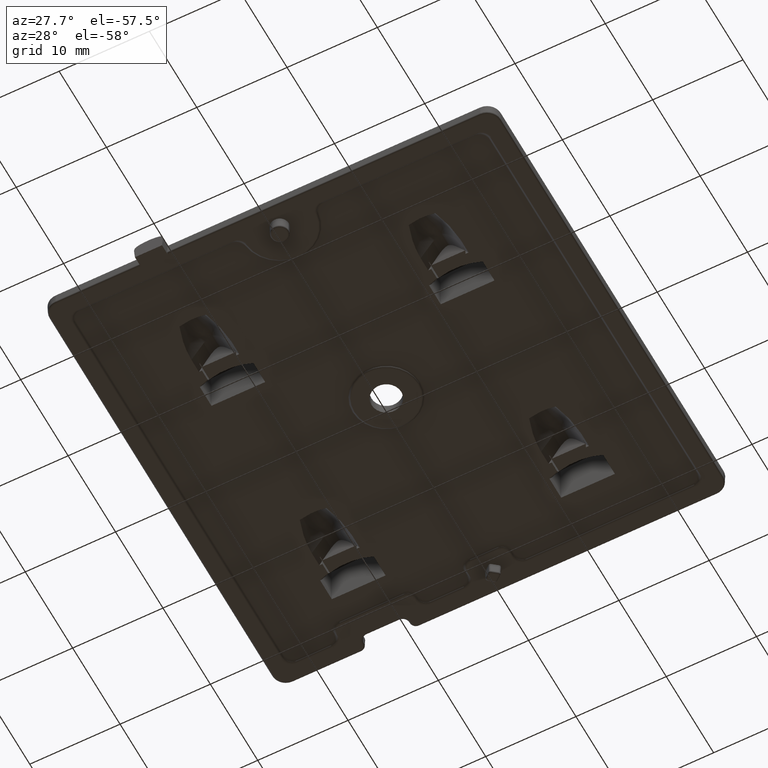
[diagram: clean part render]
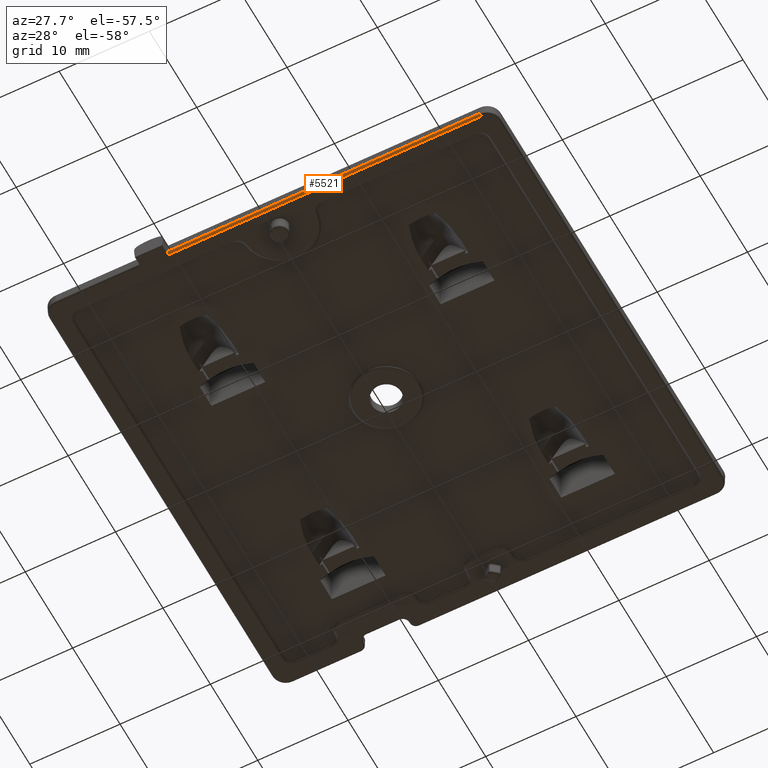
[diagram: same view with one face highlighted and labeled with its STEP entity id]
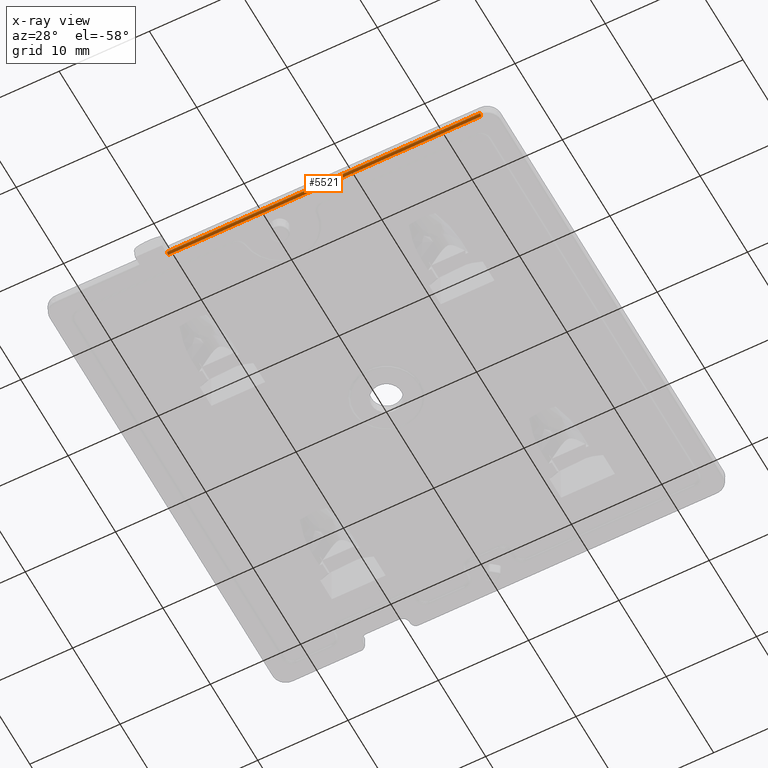
[diagram: x-ray of the same camera — body ghosted, the highlighted face saturated]
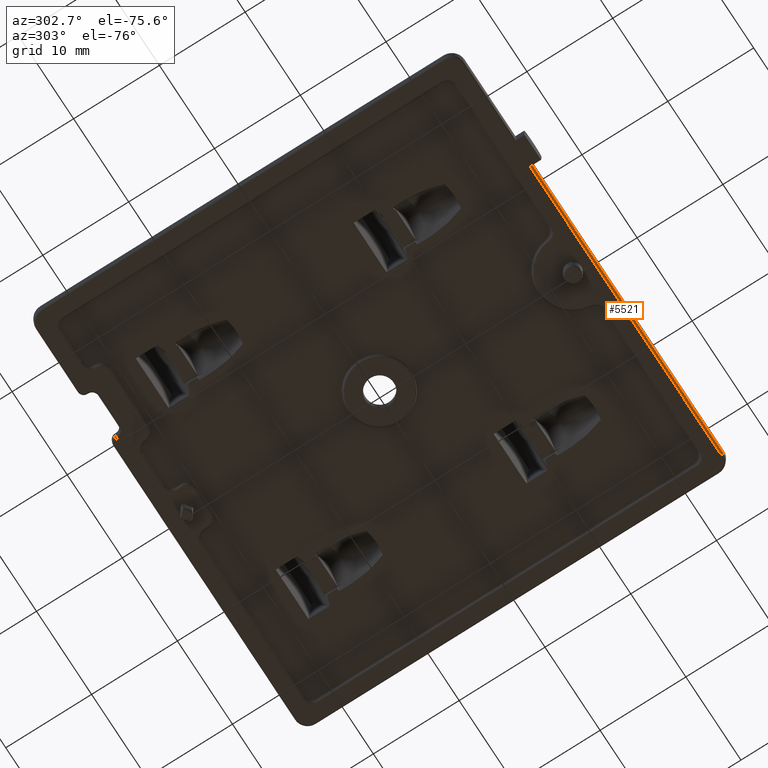
[diagram: same view with one face highlighted and labeled with its STEP entity id]
A machine part, auxiliary view. The second image highlights one B-rep face of the part: STEP entity #5521.
The next image is the same camera in x-ray: the body ghosted, the highlighted face saturated — about 0% of this face is hidden behind the body in this view.
A second angle (auxiliary view) of the same face is appended — the face is thin or edge-on in the first view.
In plain terms, the highlighted cylindrical surface (edge-blend (fillet) strip) has radius 0.25 mm, axis along (1, 0, 0).
Its self-contained STEP definition (entity closure, byte-faithful):
#2145 = AXIS2_PLACEMENT_3D ( 'NONE', #4717, #4645, #4742 ) ;
#2563 = ORIENTED_EDGE ( 'NONE', *, *, #16584, .F. ) ;
#3585 = VERTEX_POINT ( 'NONE', #5607 ) ;
#3792 = CARTESIAN_POINT ( 'NONE',  ( 23.50000000000001400, -24.96652058966291000, 0.2412751258243748800 ) ) ;
#4645 = DIRECTION ( 'NONE',  ( 1.000000000000000000, 6.938893903907227100E-017, 0.0000000000000000000 ) ) ;
#4717 = CARTESIAN_POINT ( 'NONE',  ( 25.00000000000001400, -24.71667288290813900, 0.2500000000000000000 ) ) ;
#4742 = DIRECTION ( 'NONE',  ( 0.0000000000000000000, 1.000000000000000000, 0.0000000000000000000 ) ) ;
#4981 = VECTOR ( 'NONE', #25271, 1000.000000000000000 ) ;
#5521 = ADVANCED_FACE ( 'NONE', ( #20797 ), #13826, .T. ) ;
#5607 = CARTESIAN_POINT ( 'NONE',  ( -11.17889116169957300, -24.96652058966291300, 0.2412751258243748800 ) ) ;
#6212 = DIRECTION ( 'NONE',  ( 1.000000000000000000, 0.0000000000000000000, 0.0000000000000000000 ) ) ;
#9976 = CARTESIAN_POINT ( 'NONE',  ( -11.19999999999998700, -24.71667288290814200, 8.890457814381136400E-015 ) ) ;
#10350 = LINE ( 'NONE', #23217, #4981 ) ;
#10770 = AXIS2_PLACEMENT_3D ( 'NONE', #18377, #6212, #20383 ) ;
#11626 = VERTEX_POINT ( 'NONE', #20775 ) ;
#11872 = LINE ( 'NONE', #3792, #21972 ) ;
#11944 = DIRECTION ( 'NONE',  ( 1.000000000000000000, 6.938893903907227100E-017, -4.685754456830785300E-037 ) ) ;
#12010 = CARTESIAN_POINT ( 'NONE',  ( -11.19999999999998900, -24.85909798259447700, -3.098086273787664100E-017 ) ) ;
#12608 = VERTEX_POINT ( 'NONE', #22219 ) ;
#13826 = CYLINDRICAL_SURFACE ( 'NONE', #2145, 0.2500000000000002200 ) ;
#13964 = EDGE_LOOP ( 'NONE', ( #2563, #19615, #24360, #25440 ) ) ;
#14038 = CARTESIAN_POINT ( 'NONE',  ( -11.17889116169957300, -24.96652058966291300, 0.2412751258243748800 ) ) ;
#14618 = VERTEX_POINT ( 'NONE', #18773 ) ;
#16584 = EDGE_CURVE ( 'NONE', #12608, #3585, #22490, .T. ) ;
#16707 = EDGE_CURVE ( 'NONE', #14618, #11626, #21471, .T. ) ;
#18377 = CARTESIAN_POINT ( 'NONE',  ( 23.50000000000001400, -24.71667288290813900, 0.2500000000000001100 ) ) ;
#18773 = CARTESIAN_POINT ( 'NONE',  ( 23.50000000000001400, -24.96652058966291000, 0.2412751258243751000 ) ) ;
#19615 = ORIENTED_EDGE ( 'NONE', *, *, #20935, .F. ) ;
#20383 = DIRECTION ( 'NONE',  ( 0.0000000000000000000, 0.0000000000000000000, -1.000000000000000000 ) ) ;
#20775 = CARTESIAN_POINT ( 'NONE',  ( 23.50000000000001400, -24.71667288290813900, 0.0000000000000000000 ) ) ;
#20797 = FACE_OUTER_BOUND ( 'NONE', #13964, .T. ) ;
#20935 = EDGE_CURVE ( 'NONE', #11626, #12608, #10350, .T. ) ;
#21471 = CIRCLE ( 'NONE', #10770, 0.2500000000000000000 ) ;
#21972 = VECTOR ( 'NONE', #11944, 1000.000000000000000 ) ;
#22219 = CARTESIAN_POINT ( 'NONE',  ( -11.19999999999998700, -24.71667288290814200, 8.890457814381136400E-015 ) ) ;
#22490 =( BOUNDED_CURVE ( )  B_SPLINE_CURVE ( 3, ( #9976, #12010, #26147, #14038 ),
 .UNSPECIFIED., .F., .T. ) 
 B_SPLINE_CURVE_WITH_KNOTS ( ( 4, 4 ),
 ( 3.141592653589792200, 4.677482395344801700 ),
 .UNSPECIFIED. ) 
 CURVE ( )  GEOMETRIC_REPRESENTATION_ITEM ( )  RATIONAL_B_SPLINE_CURVE ( ( 1.000000000000000000, 0.8128932002257675000, 0.8128932002257675000, 1.000000000000000000 ) ) 
 REPRESENTATION_ITEM ( '' )  );
#22793 = EDGE_CURVE ( 'NONE', #3585, #14618, #11872, .T. ) ;
#23217 = CARTESIAN_POINT ( 'NONE',  ( -23.49999999999997900, -24.71667288290814200, 0.0000000000000000000 ) ) ;
#24360 = ORIENTED_EDGE ( 'NONE', *, *, #16707, .F. ) ;
#25271 = DIRECTION ( 'NONE',  ( -1.000000000000000000, -6.938893903907227100E-017, 0.0000000000000000000 ) ) ;
#25440 = ORIENTED_EDGE ( 'NONE', *, *, #22793, .F. ) ;
#26147 = CARTESIAN_POINT ( 'NONE',  ( -11.19134415267402000, -24.96155002536605800, 0.09893678766057020800 ) ) ;